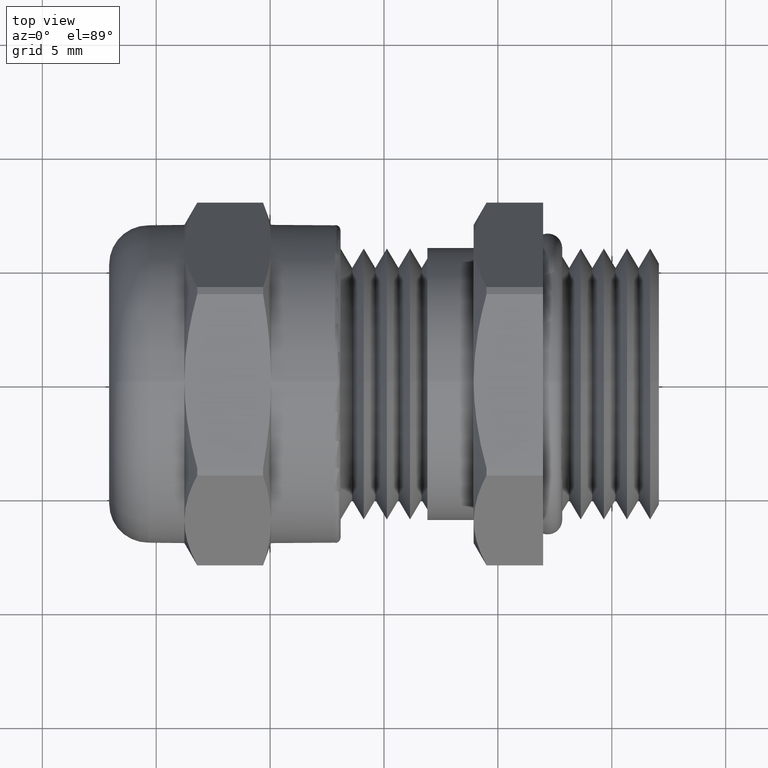
[diagram: clean part render]
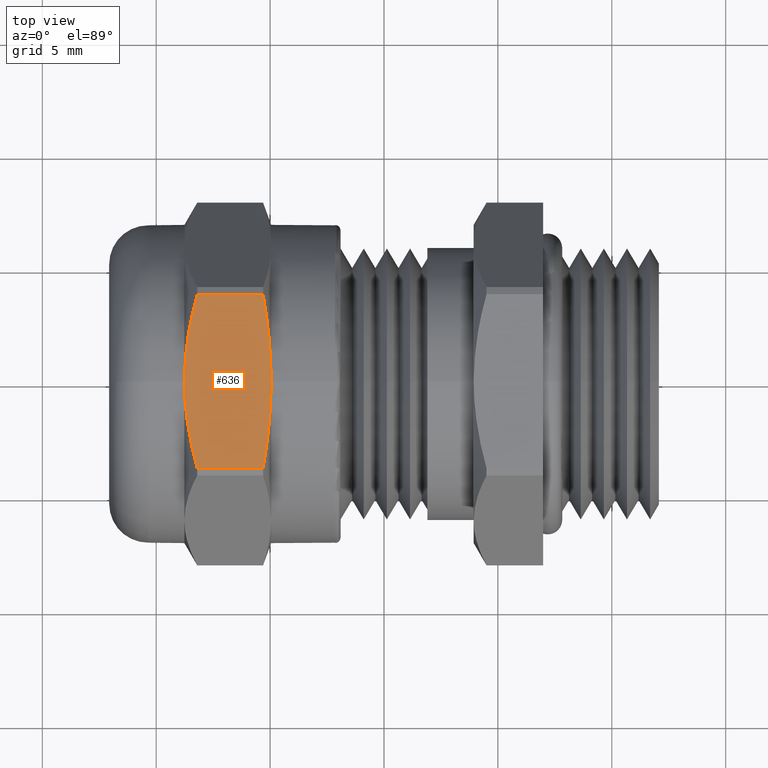
[diagram: same view with one face highlighted and labeled with its STEP entity id]
A machine part, top view. The second image highlights one B-rep face of the part: STEP entity #636.
In plain terms, the highlighted planar face has unit normal (0, 0, 1).
Its self-contained STEP definition (entity closure, byte-faithful):
#539 = VERTEX_POINT ( 'NONE', #2284 ) ;
#542 = EDGE_CURVE ( 'NONE', #543, #539, #2282, .T. ) ;
#543 = VERTEX_POINT ( 'NONE', #2278 ) ;
#627 = VERTEX_POINT ( 'NONE', #2420 ) ;
#633 = VERTEX_POINT ( 'NONE', #2470 ) ;
#635 = EDGE_CURVE ( 'NONE', #633, #627, #2469, .T. ) ;
#636 = ADVANCED_FACE ( 'NONE', ( #2465 ), #2464, .T. ) ;
#637 = EDGE_LOOP ( 'NONE', ( #638, #694, #696, #698, #699, #701 ) ) ;
#638 = ORIENTED_EDGE ( 'NONE', *, *, #542, .T. ) ;
#694 = ORIENTED_EDGE ( 'NONE', *, *, #695, .T. ) ;
#695 = EDGE_CURVE ( 'NONE', #539, #1190, #2583, .T. ) ;
#696 = ORIENTED_EDGE ( 'NONE', *, *, #697, .T. ) ;
#697 = EDGE_CURVE ( 'NONE', #1190, #627, #2576, .T. ) ;
#698 = ORIENTED_EDGE ( 'NONE', *, *, #635, .F. ) ;
#699 = ORIENTED_EDGE ( 'NONE', *, *, #700, .T. ) ;
#700 = EDGE_CURVE ( 'NONE', #633, #1200, #2622, .T. ) ;
#701 = ORIENTED_EDGE ( 'NONE', *, *, #702, .T. ) ;
#702 = EDGE_CURVE ( 'NONE', #1200, #543, #2614, .T. ) ;
#1190 = VERTEX_POINT ( 'NONE', #3357 ) ;
#1200 = VERTEX_POINT ( 'NONE', #3394 ) ;
#2278 = CARTESIAN_POINT ( 'NONE',  ( -0.3227720146361997600, -0.1505232540174439600, 0.2750000000000000200 ) ) ;
#2279 = DIRECTION ( 'NONE',  ( 1.000000000000000000, 0.0000000000000000000, 0.0000000000000000000 ) ) ;
#2280 = VECTOR ( 'NONE', #2279, 39.37007874015748100 ) ;
#2281 = CARTESIAN_POINT ( 'NONE',  ( -1.240579022644009900, -0.1505232540174440100, 0.2750000000000000800 ) ) ;
#2282 = LINE ( 'NONE', #2281, #2280 ) ;
#2284 = CARTESIAN_POINT ( 'NONE',  ( -0.2090128540192486300, -0.1505232540174439600, 0.2750000000000000200 ) ) ;
#2420 = CARTESIAN_POINT ( 'NONE',  ( -0.2090128540192486600, 0.1505232540174440100, 0.2750000000000000800 ) ) ;
#2460 = DIRECTION ( 'NONE',  ( 1.000000000000000000, 0.0000000000000000000, 0.0000000000000000000 ) ) ;
#2461 = DIRECTION ( 'NONE',  ( 0.0000000000000000000, 0.0000000000000000000, 1.000000000000000000 ) ) ;
#2462 = CARTESIAN_POINT ( 'NONE',  ( -1.240579022644009900, 0.1505232540174440100, 0.2750000000000000800 ) ) ;
#2463 = AXIS2_PLACEMENT_3D ( 'NONE', #2462, #2461, #2460 ) ;
#2464 = PLANE ( 'NONE',  #2463 ) ;
#2465 = FACE_OUTER_BOUND ( 'NONE', #637, .T. ) ;
#2466 = DIRECTION ( 'NONE',  ( 1.000000000000000000, 0.0000000000000000000, 0.0000000000000000000 ) ) ;
#2467 = VECTOR ( 'NONE', #2466, 39.37007874015748100 ) ;
#2468 = CARTESIAN_POINT ( 'NONE',  ( -1.240579022644009900, 0.1505232540174440100, 0.2750000000000000800 ) ) ;
#2469 = LINE ( 'NONE', #2468, #2467 ) ;
#2470 = CARTESIAN_POINT ( 'NONE',  ( -0.3227720146361997000, 0.1505232540174440100, 0.2750000000000000800 ) ) ;
#2575 = CARTESIAN_POINT ( 'NONE',  ( -0.1950000000000000300, 0.0000000000000000000, 0.2750000000000001300 ) ) ;
#2576 = B_SPLINE_CURVE_WITH_KNOTS ( 'NONE', 3,
 ( #2575, #2625, #2624, #2623 ),
 .UNSPECIFIED., .F., .F.,
 ( 4, 4 ),
 ( 0.01091308282382634800, 0.01477738574052721300 ),
 .UNSPECIFIED. ) ;
#2577 = CARTESIAN_POINT ( 'NONE',  ( -0.1950000000000000300, 0.0000000000000000000, 0.2750000000000001300 ) ) ;
#2578 = CARTESIAN_POINT ( 'NONE',  ( -0.1949999999999999800, -0.02505868289651304300, 0.2750000000000000200 ) ) ;
#2579 = CARTESIAN_POINT ( 'NONE',  ( -0.1962677670789086100, -0.05014449018254669300, 0.2750000000000000800 ) ) ;
#2580 = CARTESIAN_POINT ( 'NONE',  ( -0.2010924396282074100, -0.1003650817965567200, 0.2750000000000001300 ) ) ;
#2581 = CARTESIAN_POINT ( 'NONE',  ( -0.2046517302503850500, -0.1255677416575865200, 0.2750000000000001300 ) ) ;
#2582 = CARTESIAN_POINT ( 'NONE',  ( -0.2090128540192486300, -0.1505232540174439600, 0.2750000000000000200 ) ) ;
#2583 = B_SPLINE_CURVE_WITH_KNOTS ( 'NONE', 3,
 ( #2582, #2581, #2580, #2579, #2578, #2577 ),
 .UNSPECIFIED., .F., .F.,
 ( 4, 2, 4 ),
 ( 0.007060846764325510000, 0.008986964794075930100, 0.01091308282382634800 ),
 .UNSPECIFIED. ) ;
#2607 = CARTESIAN_POINT ( 'NONE',  ( -0.3227720146361997600, -0.1505232540174439600, 0.2750000000000000200 ) ) ;
#2608 = CARTESIAN_POINT ( 'NONE',  ( -0.3295796814890805700, -0.1259652611615602300, 0.2750000000000000800 ) ) ;
#2609 = CARTESIAN_POINT ( 'NONE',  ( -0.3352329082625755700, -0.1008788745532822500, 0.2750000000000001300 ) ) ;
#2610 = CARTESIAN_POINT ( 'NONE',  ( -0.3429342776278274700, -0.05066183029868545600, 0.2750000000000001300 ) ) ;
#2611 = CARTESIAN_POINT ( 'NONE',  ( -0.3450000000000001400, -0.02541243236318099800, 0.2750000000000000200 ) ) ;
#2612 = CARTESIAN_POINT ( 'NONE',  ( -0.3450000000000000800, 0.0000000000000000000, 0.2750000000000000800 ) ) ;
#2614 = B_SPLINE_CURVE_WITH_KNOTS ( 'NONE', 3,
 ( #2612, #2611, #2610, #2609, #2608, #2607 ),
 .UNSPECIFIED., .F., .F.,
 ( 4, 2, 4 ),
 ( 0.02276460333502554000, 0.02469806549942391700, 0.02663152766382229100 ),
 .UNSPECIFIED. ) ;
#2616 = CARTESIAN_POINT ( 'NONE',  ( -0.3450000000000000800, 0.0000000000000000000, 0.2750000000000000800 ) ) ;
#2617 = CARTESIAN_POINT ( 'NONE',  ( -0.3450000000000002000, 0.02541898642020288700, 0.2750000000000000800 ) ) ;
#2618 = CARTESIAN_POINT ( 'NONE',  ( -0.3428806826415499200, 0.05117989896422023300, 0.2750000000000001300 ) ) ;
#2619 = CARTESIAN_POINT ( 'NONE',  ( -0.3351162609246262100, 0.1014671253753018100, 0.2750000000000001300 ) ) ;
#2620 = CARTESIAN_POINT ( 'NONE',  ( -0.3295278864882091900, 0.1261521065652550000, 0.2750000000000000200 ) ) ;
#2621 = CARTESIAN_POINT ( 'NONE',  ( -0.3227720146361997000, 0.1505232540174440100, 0.2750000000000000800 ) ) ;
#2622 = B_SPLINE_CURVE_WITH_KNOTS ( 'NONE', 3,
 ( #2621, #2620, #2619, #2618, #2617, #2616 ),
 .UNSPECIFIED., .F., .F.,
 ( 4, 2, 4 ),
 ( 0.01889668169742385300, 0.02083064251622469800, 0.02276460333502554000 ),
 .UNSPECIFIED. ) ;
#2623 = CARTESIAN_POINT ( 'NONE',  ( -0.2090128540192486600, 0.1505232540174440100, 0.2750000000000000800 ) ) ;
#2624 = CARTESIAN_POINT ( 'NONE',  ( -0.2002598396695896300, 0.1004361734010998800, 0.2750000000000000800 ) ) ;
#2625 = CARTESIAN_POINT ( 'NONE',  ( -0.1950000000000000100, 0.05027435489933335100, 0.2750000000000000800 ) ) ;
#3357 = CARTESIAN_POINT ( 'NONE',  ( -0.1950000000000000300, 0.0000000000000000000, 0.2750000000000001300 ) ) ;
#3394 = CARTESIAN_POINT ( 'NONE',  ( -0.3450000000000000800, 0.0000000000000000000, 0.2750000000000000800 ) ) ;